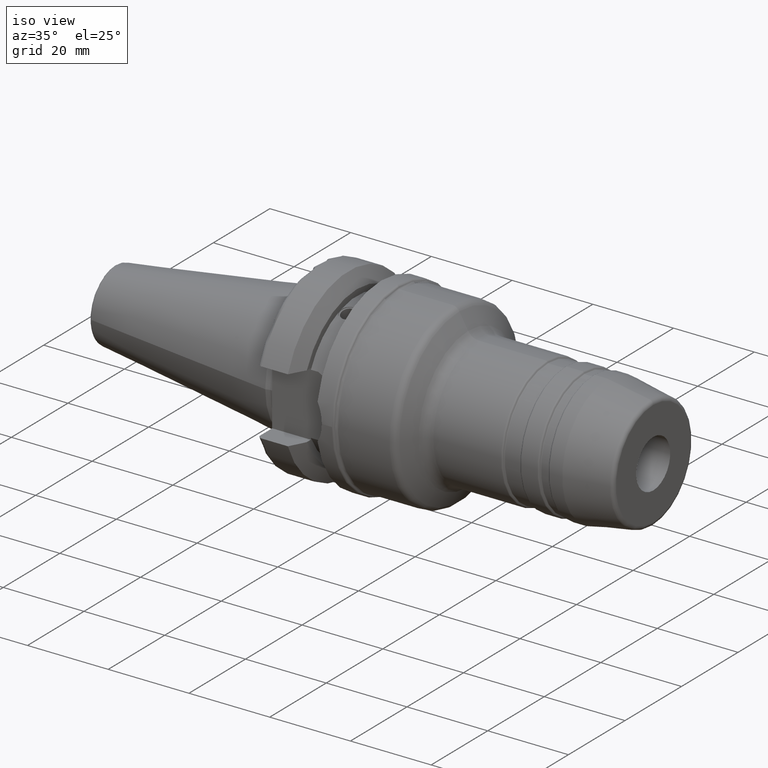
[diagram: clean part render]
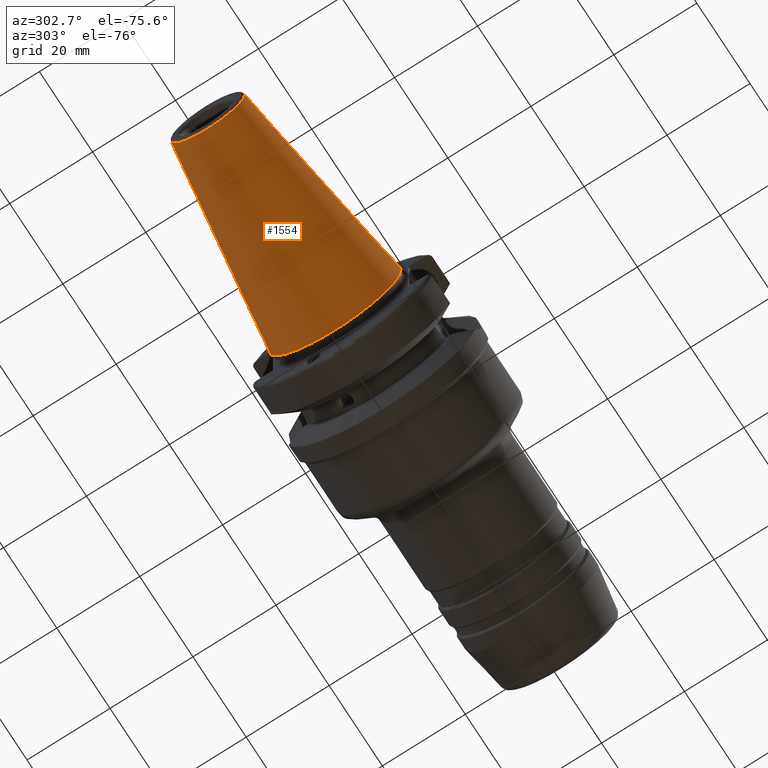
[diagram: tour spotlight — one face highlighted and labeled with its STEP entity id]
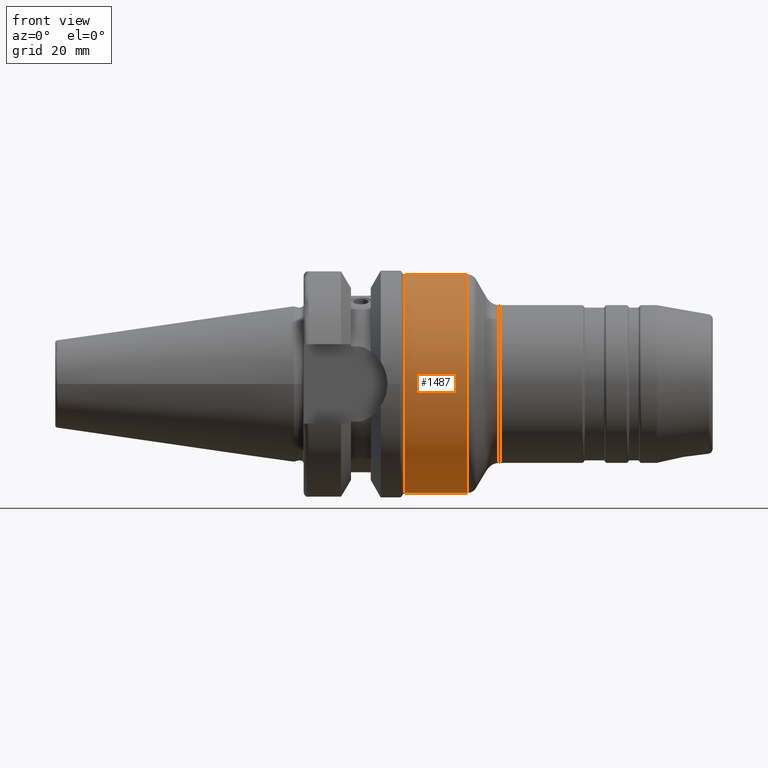
[diagram: tour spotlight — one face highlighted and labeled with its STEP entity id]
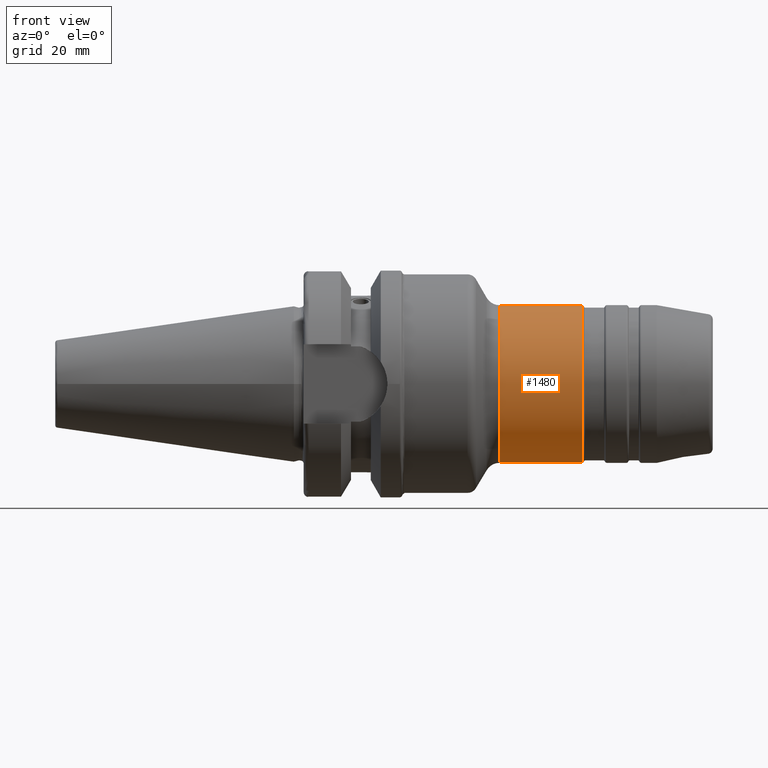
[diagram: tour spotlight — one face highlighted and labeled with its STEP entity id]
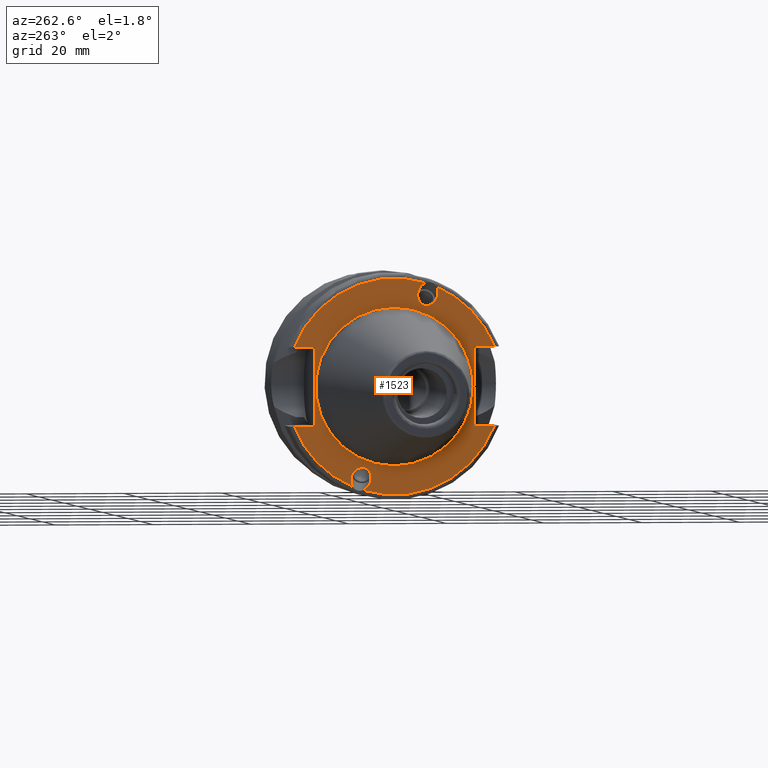
[diagram: tour spotlight — one face highlighted and labeled with its STEP entity id]
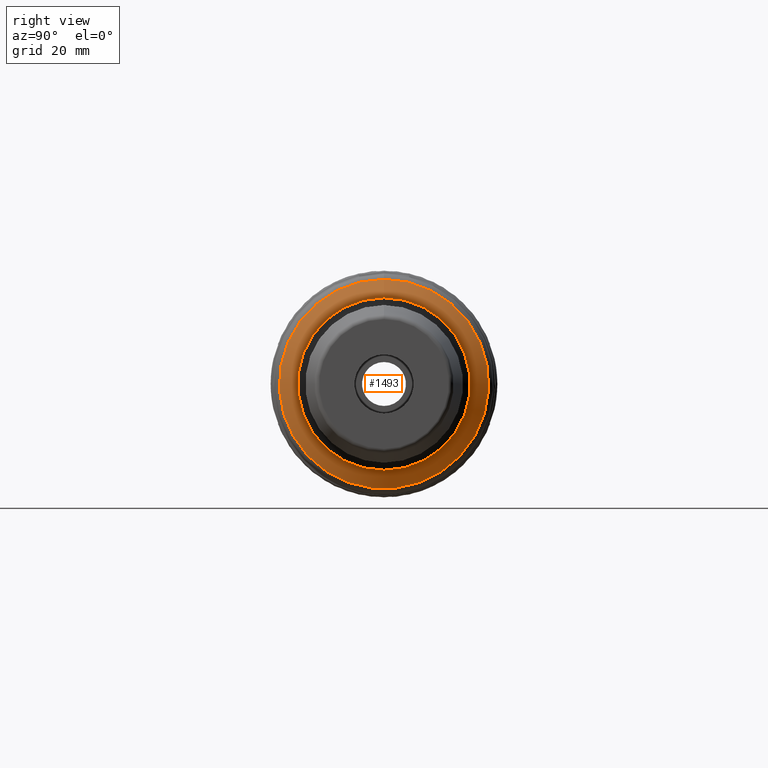
[diagram: tour spotlight — one face highlighted and labeled with its STEP entity id]
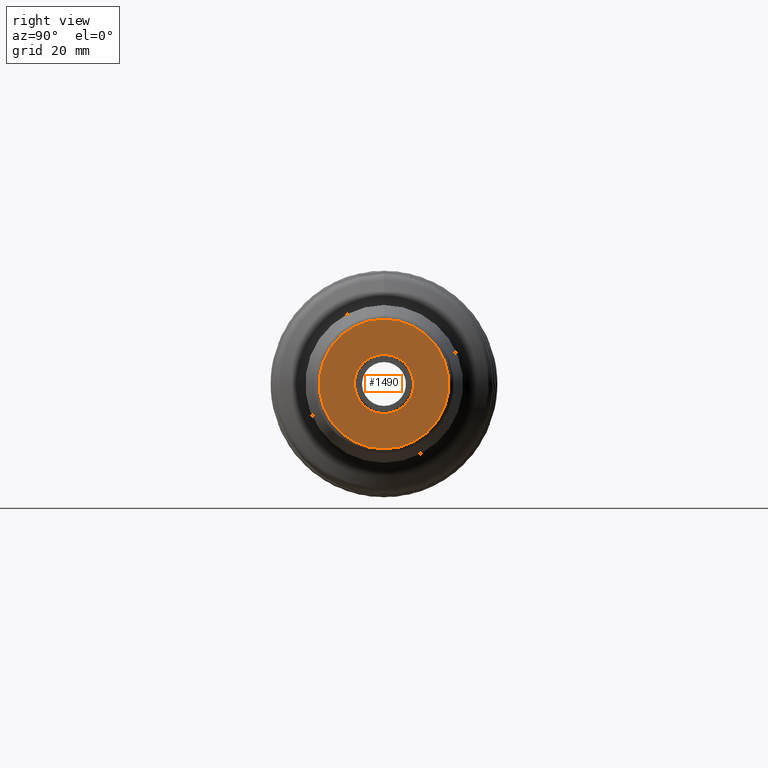
[diagram: tour spotlight — one face highlighted and labeled with its STEP entity id]
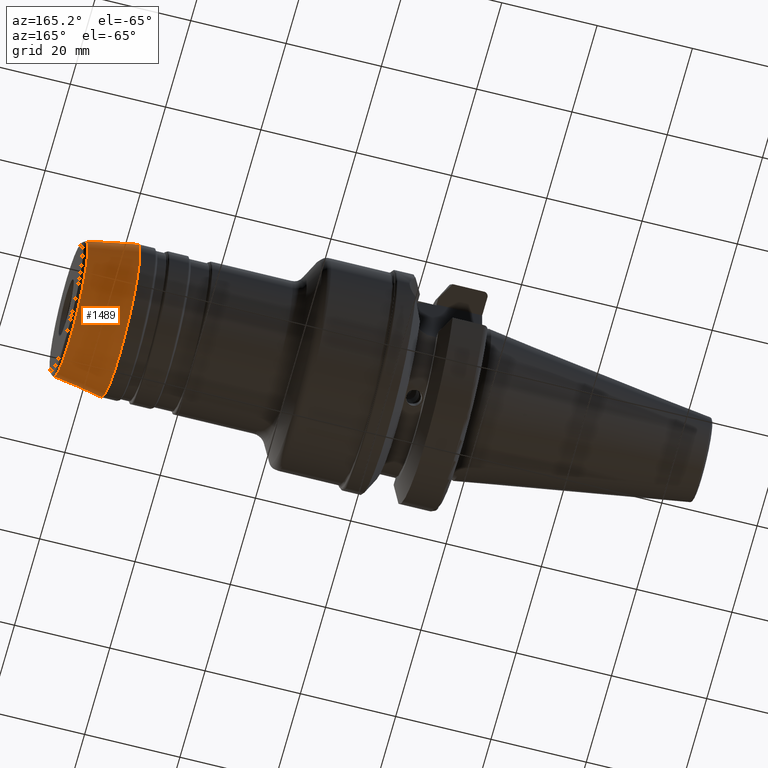
[diagram: tour spotlight — one face highlighted and labeled with its STEP entity id]
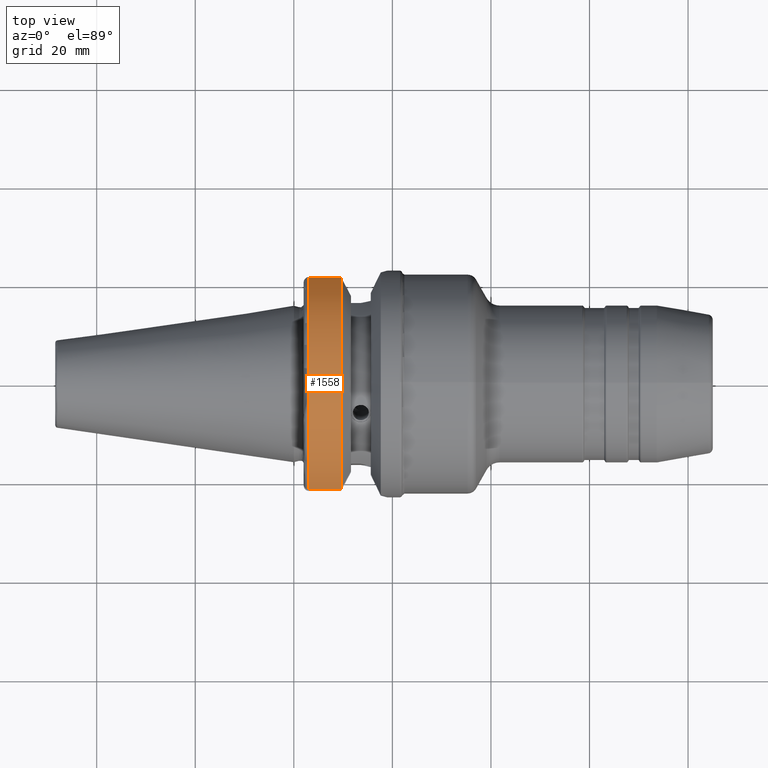
[diagram: tour spotlight — one face highlighted and labeled with its STEP entity id]
A machine part: a face-by-face anatomy tour. The part has 93 B-rep faces; the first image is the clean iso view, then the 8 largest visible faces are spotlighted one at a time (largest first), each with its STEP entity span.

Face 1 — auxiliary view, entity #1554. In plain terms, the highlighted conical surface has half-angle 8.297 deg.
Definition (entity closure, byte-faithful):
#114=CONICAL_SURFACE('',#1789,12.3770304778568,0.144812498238939);
#187=LINE('',#3059,#260);
#260=VECTOR('',#2288,12.3770304778568);
#386=FACE_OUTER_BOUND('',#490,.T.);
#490=EDGE_LOOP('',(#1409,#1410,#1411,#1412,#1413));
#594=CIRCLE('',#1786,8.87906095571352);
#595=CIRCLE('',#1787,8.87906095571352);
#597=CIRCLE('',#1790,15.875);
#742=VERTEX_POINT('',#3051);
#743=VERTEX_POINT('',#3052);
#744=VERTEX_POINT('',#3057);
#969=EDGE_CURVE('',#742,#743,#594,.T.);
#970=EDGE_CURVE('',#743,#742,#595,.T.);
#972=EDGE_CURVE('',#744,#744,#597,.T.);
#973=EDGE_CURVE('',#744,#742,#187,.T.);
#1409=ORIENTED_EDGE('',*,*,#972,.F.);
#1410=ORIENTED_EDGE('',*,*,#973,.T.);
#1411=ORIENTED_EDGE('',*,*,#969,.T.);
#1412=ORIENTED_EDGE('',*,*,#970,.T.);
#1413=ORIENTED_EDGE('',*,*,#973,.F.);
#1554=ADVANCED_FACE('',(#386),#114,.T.);
#1786=AXIS2_PLACEMENT_3D('',#3053,#2278,#2279);
#1787=AXIS2_PLACEMENT_3D('',#3054,#2280,#2281);
#1789=AXIS2_PLACEMENT_3D('',#3056,#2284,#2285);
#1790=AXIS2_PLACEMENT_3D('',#3058,#2286,#2287);
#2278=DIRECTION('center_axis',(1.,1.62798202122572E-21,0.));
#2279=DIRECTION('ref_axis',(0.,0.,-1.));
#2280=DIRECTION('center_axis',(1.,1.62798202122572E-21,0.));
#2281=DIRECTION('ref_axis',(0.,0.,-1.));
#2284=DIRECTION('center_axis',(1.,1.62798202122572E-21,0.));
#2285=DIRECTION('ref_axis',(0.,1.,0.));
#2286=DIRECTION('center_axis',(1.,1.62798202122572E-21,0.));
#2287=DIRECTION('ref_axis',(0.,0.,-1.));
#2288=DIRECTION('',(-0.989532981063282,0.144306893071729,1.76724974695192E-17));
#3051=CARTESIAN_POINT('',(-47.9721534465359,-8.87906095571352,-1.08737135788488E-15));
#3052=CARTESIAN_POINT('',(-47.9721534465359,9.94286113939637E-16,8.87906095571352));
#3053=CARTESIAN_POINT('Origin',(-47.9721534465359,2.08165747182452E-15,
0.));
#3054=CARTESIAN_POINT('Origin',(-47.9721534465359,2.08165747182452E-15,
0.));
#3056=CARTESIAN_POINT('Origin',(-23.9860767232679,2.08169652072618E-15,
0.));
#3057=CARTESIAN_POINT('',(-8.88178419700125E-15,-15.875,-1.94412679364642E-15));
#3058=CARTESIAN_POINT('Origin',(-4.44089209850063E-15,2.08173556962785E-15,
0.));
#3059=CARTESIAN_POINT('',(-23.9860767232679,-12.3770304778568,-1.51574907576565E-15));

Face 2 — front view, entity #1487. In plain terms, the highlighted cylindrical surface (bore or boss wall) has radius 22.25 mm, axis along (1, 0, 0).
Definition (entity closure, byte-faithful):
#126=LINE('',#2397,#199);
#199=VECTOR('',#1913,22.25);
#268=CYLINDRICAL_SURFACE('',#1632,22.25);
#319=FACE_OUTER_BOUND('',#412,.T.);
#412=EDGE_LOOP('',(#1054,#1055,#1056,#1057));
#526=CIRCLE('',#1631,22.25);
#527=CIRCLE('',#1633,22.25);
#623=VERTEX_POINT('',#2391);
#624=VERTEX_POINT('',#2395);
#785=EDGE_CURVE('',#623,#623,#526,.T.);
#786=EDGE_CURVE('',#624,#624,#527,.T.);
#787=EDGE_CURVE('',#624,#623,#126,.T.);
#1054=ORIENTED_EDGE('',*,*,#786,.F.);
#1055=ORIENTED_EDGE('',*,*,#787,.T.);
#1056=ORIENTED_EDGE('',*,*,#785,.F.);
#1057=ORIENTED_EDGE('',*,*,#787,.F.);
#1487=ADVANCED_FACE('',(#319),#268,.T.);
#1631=AXIS2_PLACEMENT_3D('',#2393,#1907,#1908);
#1632=AXIS2_PLACEMENT_3D('',#2394,#1909,#1910);
#1633=AXIS2_PLACEMENT_3D('',#2396,#1911,#1912);
#1907=DIRECTION('center_axis',(-1.,0.,0.));
#1908=DIRECTION('ref_axis',(0.,1.22464610627403E-16,-1.));
#1909=DIRECTION('center_axis',(1.,0.,0.));
#1910=DIRECTION('ref_axis',(0.,0.,-1.));
#1911=DIRECTION('center_axis',(1.,0.,0.));
#1912=DIRECTION('ref_axis',(0.,1.22464679914735E-16,1.));
#1913=DIRECTION('',(-1.,0.,0.));
#2391=CARTESIAN_POINT('',(22.4682458365518,2.08177211288445E-15,22.25));
#2393=CARTESIAN_POINT('Origin',(22.4682458365518,2.0817705712413E-15,0.));
#2394=CARTESIAN_POINT('Origin',(29.1957804087824,0.,0.));
#2395=CARTESIAN_POINT('',(35.2368602791856,-2.72483912810286E-15,22.25));
#2396=CARTESIAN_POINT('Origin',(35.2368602791856,0.,0.));
#2397=CARTESIAN_POINT('',(29.1957804087824,-2.72483912810286E-15,22.25));

Face 3 — front view, entity #1480. In plain terms, the highlighted cylindrical surface (bore or boss wall) has radius 16 mm, axis along (1, 0, 0).
Definition (entity closure, byte-faithful):
#123=LINE('',#2368,#196);
#196=VECTOR('',#1872,16.);
#265=CYLINDRICAL_SURFACE('',#1614,16.);
#312=FACE_OUTER_BOUND('',#405,.T.);
#405=EDGE_LOOP('',(#1026,#1027,#1028,#1029));
#515=CIRCLE('',#1613,16.);
#516=CIRCLE('',#1615,16.);
#616=VERTEX_POINT('',#2363);
#617=VERTEX_POINT('',#2367);
#771=EDGE_CURVE('',#616,#616,#515,.T.);
#772=EDGE_CURVE('',#616,#617,#123,.T.);
#773=EDGE_CURVE('',#617,#617,#516,.T.);
#1026=ORIENTED_EDGE('',*,*,#771,.F.);
#1027=ORIENTED_EDGE('',*,*,#772,.T.);
#1028=ORIENTED_EDGE('',*,*,#773,.F.);
#1029=ORIENTED_EDGE('',*,*,#772,.F.);
#1480=ADVANCED_FACE('',(#312),#265,.T.);
#1613=AXIS2_PLACEMENT_3D('',#2365,#1868,#1869);
#1614=AXIS2_PLACEMENT_3D('',#2366,#1870,#1871);
#1615=AXIS2_PLACEMENT_3D('',#2369,#1873,#1874);
#1868=DIRECTION('center_axis',(1.,0.,0.));
#1869=DIRECTION('ref_axis',(0.,1.22464679914735E-16,1.));
#1870=DIRECTION('center_axis',(1.,0.,0.));
#1871=DIRECTION('ref_axis',(0.,0.,-1.));
#1872=DIRECTION('',(-1.,0.,0.));
#1873=DIRECTION('center_axis',(-1.,0.,0.));
#1874=DIRECTION('ref_axis',(0.,1.22464679914735E-16,1.));
#2363=CARTESIAN_POINT('',(58.4803847577293,-1.95943487863576E-15,16.));
#2365=CARTESIAN_POINT('Origin',(58.4803847577293,0.,0.));
#2366=CARTESIAN_POINT('Origin',(49.3556624327026,0.,0.));
#2367=CARTESIAN_POINT('',(41.7320508075689,-1.95943487863576E-15,16.));
#2368=CARTESIAN_POINT('',(49.3556624327026,-1.95943487863576E-15,16.));
#2369=CARTESIAN_POINT('Origin',(41.7320508075689,0.,0.));

Face 4 — auxiliary view, entity #1523. In plain terms, the highlighted planar face has unit normal (-1, -0, 0).
Definition (entity closure, byte-faithful):
#27=ELLIPSE('',#1684,2.44154917752292,2.00000000000001);
#28=ELLIPSE('',#1685,2.44154917752292,2.00000000000001);
#37=ELLIPSE('',#1724,2.44154917752292,2.00000000000001);
#38=ELLIPSE('',#1725,2.44154917752292,2.00000000000001);
#78=FACE_BOUND('',#457,.T.);
#88=PLANE('',#1726);
#151=LINE('',#2810,#224);
#152=LINE('',#2812,#225);
#153=LINE('',#2814,#226);
#154=LINE('',#2819,#227);
#155=LINE('',#2821,#228);
#156=LINE('',#2822,#229);
#224=VECTOR('',#2124,10.);
#225=VECTOR('',#2125,10.);
#226=VECTOR('',#2126,10.);
#227=VECTOR('',#2131,10.);
#228=VECTOR('',#2132,10.);
#229=VECTOR('',#2133,10.);
#355=FACE_OUTER_BOUND('',#456,.T.);
#456=EDGE_LOOP('',(#1231,#1232,#1233,#1234,#1235,#1236,#1237,#1238,#1239,
#1240,#1241,#1242,#1243,#1244));
#457=EDGE_LOOP('',(#1245));
#553=CIRCLE('',#1693,22.);
#555=CIRCLE('',#1695,22.);
#565=CIRCLE('',#1727,22.);
#566=CIRCLE('',#1728,22.);
#567=CIRCLE('',#1729,16.1);
#657=VERTEX_POINT('',#2609);
#658=VERTEX_POINT('',#2611);
#659=VERTEX_POINT('',#2613);
#666=VERTEX_POINT('',#2656);
#669=VERTEX_POINT('',#2671);
#690=VERTEX_POINT('',#2788);
#691=VERTEX_POINT('',#2790);
#692=VERTEX_POINT('',#2792);
#693=VERTEX_POINT('',#2809);
#694=VERTEX_POINT('',#2811);
#695=VERTEX_POINT('',#2813);
#696=VERTEX_POINT('',#2816);
#697=VERTEX_POINT('',#2818);
#698=VERTEX_POINT('',#2820);
#699=VERTEX_POINT('',#2823);
#838=EDGE_CURVE('',#658,#657,#27,.T.);
#840=EDGE_CURVE('',#657,#659,#28,.T.);
#849=EDGE_CURVE('',#658,#666,#553,.T.);
#853=EDGE_CURVE('',#669,#659,#555,.T.);
#884=EDGE_CURVE('',#691,#690,#37,.T.);
#886=EDGE_CURVE('',#690,#692,#38,.T.);
#887=EDGE_CURVE('',#669,#693,#151,.T.);
#888=EDGE_CURVE('',#693,#694,#152,.T.);
#889=EDGE_CURVE('',#694,#695,#153,.T.);
#890=EDGE_CURVE('',#691,#695,#565,.T.);
#891=EDGE_CURVE('',#696,#692,#566,.T.);
#892=EDGE_CURVE('',#696,#697,#154,.T.);
#893=EDGE_CURVE('',#697,#698,#155,.T.);
#894=EDGE_CURVE('',#698,#666,#156,.T.);
#895=EDGE_CURVE('',#699,#699,#567,.T.);
#1231=ORIENTED_EDGE('',*,*,#838,.T.);
#1232=ORIENTED_EDGE('',*,*,#840,.T.);
#1233=ORIENTED_EDGE('',*,*,#853,.F.);
#1234=ORIENTED_EDGE('',*,*,#887,.T.);
#1235=ORIENTED_EDGE('',*,*,#888,.T.);
#1236=ORIENTED_EDGE('',*,*,#889,.T.);
#1237=ORIENTED_EDGE('',*,*,#890,.F.);
#1238=ORIENTED_EDGE('',*,*,#884,.T.);
#1239=ORIENTED_EDGE('',*,*,#886,.T.);
#1240=ORIENTED_EDGE('',*,*,#891,.F.);
#1241=ORIENTED_EDGE('',*,*,#892,.T.);
#1242=ORIENTED_EDGE('',*,*,#893,.T.);
#1243=ORIENTED_EDGE('',*,*,#894,.T.);
#1244=ORIENTED_EDGE('',*,*,#849,.F.);
#1245=ORIENTED_EDGE('',*,*,#895,.T.);
#1523=ADVANCED_FACE('',(#355,#78),#88,.T.);
#1684=AXIS2_PLACEMENT_3D('',#2612,#2027,#2028);
#1685=AXIS2_PLACEMENT_3D('',#2628,#2029,#2030);
#1693=AXIS2_PLACEMENT_3D('',#2657,#2047,#2048);
#1695=AXIS2_PLACEMENT_3D('',#2682,#2051,#2052);
#1724=AXIS2_PLACEMENT_3D('',#2791,#2118,#2119);
#1725=AXIS2_PLACEMENT_3D('',#2807,#2120,#2121);
#1726=AXIS2_PLACEMENT_3D('',#2808,#2122,#2123);
#1727=AXIS2_PLACEMENT_3D('',#2815,#2127,#2128);
#1728=AXIS2_PLACEMENT_3D('',#2817,#2129,#2130);
#1729=AXIS2_PLACEMENT_3D('',#2824,#2134,#2135);
#2027=DIRECTION('center_axis',(1.,1.62798202122572E-21,0.));
#2028=DIRECTION('ref_axis',(5.68400912649002E-17,-0.34202014332567,0.939692620785908));
#2029=DIRECTION('center_axis',(1.,1.62798202122572E-21,0.));
#2030=DIRECTION('ref_axis',(5.68400912649002E-17,-0.34202014332567,0.939692620785908));
#2047=DIRECTION('center_axis',(1.,1.62798202122572E-21,0.));
#2048=DIRECTION('ref_axis',(0.,0.,-1.));
#2051=DIRECTION('center_axis',(1.,1.62798202122572E-21,0.));
#2052=DIRECTION('ref_axis',(0.,0.,-1.));
#2118=DIRECTION('center_axis',(1.,1.62798202122572E-21,0.));
#2119=DIRECTION('ref_axis',(5.68400912649001E-17,0.34202014332567,-0.939692620785908));
#2120=DIRECTION('center_axis',(1.,1.62798202122572E-21,0.));
#2121=DIRECTION('ref_axis',(5.68400912649001E-17,0.34202014332567,-0.939692620785908));
#2122=DIRECTION('center_axis',(-1.,-1.62798202122572E-21,0.));
#2123=DIRECTION('ref_axis',(0.,0.,1.));
#2124=DIRECTION('',(1.62798202122572E-21,-1.,0.));
#2125=DIRECTION('',(0.,0.,-1.));
#2126=DIRECTION('',(-1.62798202122572E-21,1.,-8.07786870900826E-37));
#2127=DIRECTION('center_axis',(1.,1.62798202122572E-21,0.));
#2128=DIRECTION('ref_axis',(0.,0.,-1.));
#2129=DIRECTION('center_axis',(1.,1.62798202122572E-21,0.));
#2130=DIRECTION('ref_axis',(0.,0.,-1.));
#2131=DIRECTION('',(-1.62798202122572E-21,1.,-8.07786870900826E-37));
#2132=DIRECTION('',(0.,0.,1.));
#2133=DIRECTION('',(1.62798202122572E-21,-1.,0.));
#2134=DIRECTION('center_axis',(1.,1.62798202122572E-21,0.));
#2135=DIRECTION('ref_axis',(0.,0.,-1.));
#2609=CARTESIAN_POINT('',(1.99999999999999,-6.00534386688031,16.499546670314));
#2611=CARTESIAN_POINT('',(2.,-8.62571963431158,20.2385019403673));
#2612=CARTESIAN_POINT('Origin',(1.99999999999999,-6.84040286651337,18.7938524157182));
#2613=CARTESIAN_POINT('',(2.,-6.40137369211844,21.0480976540364));
#2628=CARTESIAN_POINT('Origin',(1.99999999999999,-6.84040286651337,18.7938524157182));
#2656=CARTESIAN_POINT('',(2.,-20.4743131752936,8.05));
#2657=CARTESIAN_POINT('Origin',(2.,2.08173882559189E-15,0.));
#2671=CARTESIAN_POINT('',(2.,20.4743131752936,8.05));
#2682=CARTESIAN_POINT('Origin',(2.,2.08173882559189E-15,0.));
#2788=CARTESIAN_POINT('',(1.99999999999999,6.00534386688031,-16.499546670314));
#2790=CARTESIAN_POINT('',(2.,8.62571963431162,-20.2385019403673));
#2791=CARTESIAN_POINT('Origin',(1.99999999999999,6.84040286651337,-18.7938524157182));
#2792=CARTESIAN_POINT('',(2.,6.40137369211843,-21.0480976540364));
#2807=CARTESIAN_POINT('Origin',(1.99999999999999,6.84040286651337,-18.7938524157182));
#2808=CARTESIAN_POINT('Origin',(1.99999999999999,22.,0.));
#2809=CARTESIAN_POINT('',(1.99999999999999,16.3,8.05));
#2810=CARTESIAN_POINT('',(1.99999999999999,19.15,8.05));
#2811=CARTESIAN_POINT('',(1.99999999999999,16.3,-8.05));
#2812=CARTESIAN_POINT('',(1.99999999999999,16.3,0.));
#2813=CARTESIAN_POINT('',(2.,20.4743131752936,-8.05));
#2814=CARTESIAN_POINT('',(1.99999999999999,19.15,-8.05));
#2815=CARTESIAN_POINT('Origin',(2.,2.08173882559189E-15,0.));
#2816=CARTESIAN_POINT('',(2.,-20.4743131752936,-8.05));
#2817=CARTESIAN_POINT('Origin',(2.,2.08173882559189E-15,0.));
#2818=CARTESIAN_POINT('',(1.99999999999999,-16.3,-8.05));
#2819=CARTESIAN_POINT('',(1.99999999999999,2.85,-8.05));
#2820=CARTESIAN_POINT('',(1.99999999999999,-16.3,8.05));
#2821=CARTESIAN_POINT('',(1.99999999999999,-16.3,0.));
#2822=CARTESIAN_POINT('',(1.99999999999999,2.85,8.05));
#2823=CARTESIAN_POINT('',(2.,1.10057478964651E-16,16.1));
#2824=CARTESIAN_POINT('Origin',(2.,2.08173882559189E-15,0.));

Face 5 — right view, entity #1493. In plain terms, the highlighted conical surface has half-angle 60 deg.
Definition (entity closure, byte-faithful):
#106=CONICAL_SURFACE('',#1647,19.125,1.0471975511966);
#128=LINE('',#2420,#201);
#201=VECTOR('',#1945,19.125);
#325=FACE_OUTER_BOUND('',#419,.T.);
#419=EDGE_LOOP('',(#1076,#1077,#1078,#1079));
#534=CIRCLE('',#1645,21.25);
#536=CIRCLE('',#1648,17.5);
#629=VERTEX_POINT('',#2414);
#630=VERTEX_POINT('',#2418);
#795=EDGE_CURVE('',#629,#629,#534,.T.);
#797=EDGE_CURVE('',#630,#630,#536,.T.);
#798=EDGE_CURVE('',#630,#629,#128,.T.);
#1076=ORIENTED_EDGE('',*,*,#797,.F.);
#1077=ORIENTED_EDGE('',*,*,#798,.T.);
#1078=ORIENTED_EDGE('',*,*,#795,.F.);
#1079=ORIENTED_EDGE('',*,*,#798,.F.);
#1493=ADVANCED_FACE('',(#325),#106,.T.);
#1645=AXIS2_PLACEMENT_3D('',#2415,#1937,#1938);
#1647=AXIS2_PLACEMENT_3D('',#2417,#1941,#1942);
#1648=AXIS2_PLACEMENT_3D('',#2419,#1943,#1944);
#1937=DIRECTION('center_axis',(-1.,0.,0.));
#1938=DIRECTION('ref_axis',(0.,0.,1.));
#1941=DIRECTION('center_axis',(-1.,0.,0.));
#1942=DIRECTION('ref_axis',(0.,0.,-1.));
#1943=DIRECTION('center_axis',(1.,0.,0.));
#1944=DIRECTION('ref_axis',(0.,0.,1.));
#1945=DIRECTION('',(-0.5,-1.06057523872491E-16,0.866025403784439));
#2414=CARTESIAN_POINT('',(36.9689110867545,-2.60237444818813E-15,21.25));
#2415=CARTESIAN_POINT('Origin',(36.9689110867545,-2.60237444818813E-15,
0.));
#2417=CARTESIAN_POINT('Origin',(38.1957804087824,0.,0.));
#2418=CARTESIAN_POINT('',(39.1339745962156,-2.14313189850787E-15,17.5));
#2419=CARTESIAN_POINT('Origin',(39.1339745962156,-2.14313189850787E-15,
0.));
#2420=CARTESIAN_POINT('',(38.1957804087824,-2.34213700336931E-15,19.125));

Face 6 — right view, entity #1490. In plain terms, the highlighted planar face has unit normal (1, 0, 0).
Definition (entity closure, byte-faithful):
#70=FACE_BOUND('',#416,.T.);
#81=PLANE('',#1640);
#322=FACE_OUTER_BOUND('',#415,.T.);
#415=EDGE_LOOP('',(#1066));
#416=EDGE_LOOP('',(#1067));
#528=CIRCLE('',#1635,13.1609003688227);
#532=CIRCLE('',#1641,6.);
#625=VERTEX_POINT('',#2399);
#628=VERTEX_POINT('',#2409);
#788=EDGE_CURVE('',#625,#625,#528,.T.);
#793=EDGE_CURVE('',#628,#628,#532,.T.);
#1066=ORIENTED_EDGE('',*,*,#788,.F.);
#1067=ORIENTED_EDGE('',*,*,#793,.F.);
#1490=ADVANCED_FACE('',(#322,#70),#81,.T.);
#1635=AXIS2_PLACEMENT_3D('',#2400,#1916,#1917);
#1640=AXIS2_PLACEMENT_3D('',#2408,#1927,#1928);
#1641=AXIS2_PLACEMENT_3D('',#2410,#1929,#1930);
#1916=DIRECTION('center_axis',(-1.,0.,0.));
#1917=DIRECTION('ref_axis',(0.,1.22464679914735E-16,1.));
#1927=DIRECTION('center_axis',(1.,0.,0.));
#1928=DIRECTION('ref_axis',(0.,0.,-1.));
#1929=DIRECTION('center_axis',(1.,0.,0.));
#1930=DIRECTION('ref_axis',(0.,0.,-1.));
#2399=CARTESIAN_POINT('',(85.,-1.6117454510576E-15,13.1609003688227));
#2400=CARTESIAN_POINT('Origin',(85.,0.,0.));
#2408=CARTESIAN_POINT('Origin',(85.,0.,-6.));
#2409=CARTESIAN_POINT('',(85.,-7.34788079488411E-16,5.99999999999999));
#2410=CARTESIAN_POINT('Origin',(85.,0.,0.));

Face 7 — auxiliary view, entity #1489. In plain terms, the highlighted conical surface has half-angle 10 deg.
Definition (entity closure, byte-faithful):
#105=CONICAL_SURFACE('',#1638,15.,0.174532925199432);
#127=LINE('',#2406,#200);
#200=VECTOR('',#1924,15.);
#321=FACE_OUTER_BOUND('',#414,.T.);
#414=EDGE_LOOP('',(#1062,#1063,#1064,#1065));
#530=CIRCLE('',#1637,14.1457081218349);
#531=CIRCLE('',#1639,15.9848077530122);
#626=VERTEX_POINT('',#2401);
#627=VERTEX_POINT('',#2405);
#790=EDGE_CURVE('',#626,#626,#530,.T.);
#791=EDGE_CURVE('',#626,#627,#127,.T.);
#792=EDGE_CURVE('',#627,#627,#531,.T.);
#1062=ORIENTED_EDGE('',*,*,#790,.F.);
#1063=ORIENTED_EDGE('',*,*,#791,.T.);
#1064=ORIENTED_EDGE('',*,*,#792,.F.);
#1065=ORIENTED_EDGE('',*,*,#791,.F.);
#1489=ADVANCED_FACE('',(#321),#105,.T.);
#1637=AXIS2_PLACEMENT_3D('',#2403,#1920,#1921);
#1638=AXIS2_PLACEMENT_3D('',#2404,#1922,#1923);
#1639=AXIS2_PLACEMENT_3D('',#2407,#1925,#1926);
#1920=DIRECTION('center_axis',(1.,0.,0.));
#1921=DIRECTION('ref_axis',(0.,0.,1.));
#1922=DIRECTION('center_axis',(-1.,0.,0.));
#1923=DIRECTION('ref_axis',(0.,0.,-1.));
#1924=DIRECTION('',(-0.984807753012208,-2.12657684957576E-17,0.17364817766693));
#1925=DIRECTION('center_axis',(-1.,0.,0.));
#1926=DIRECTION('ref_axis',(0.,0.,1.));
#2401=CARTESIAN_POINT('',(84.1736481776669,-1.73234961730779E-15,14.1457081218349));
#2403=CARTESIAN_POINT('Origin',(84.1736481776669,-1.73234961730779E-15,
0.));
#2404=CARTESIAN_POINT('Origin',(79.3287181803823,0.,0.));
#2405=CARTESIAN_POINT('',(73.7435958749056,-1.95757436497122E-15,15.9848077530122));
#2406=CARTESIAN_POINT('',(79.3287181803823,-1.83697019872103E-15,15.));
#2407=CARTESIAN_POINT('Origin',(73.7435958749056,-1.95757436497122E-15,
0.));

Face 8 — top view, entity #1558. In plain terms, the highlighted cylindrical surface (partial cylindrical patch) has radius 23 mm, axis along (1, 0, 0).
Definition (entity closure, byte-faithful):
#165=LINE('',#2899,#238);
#181=LINE('',#3017,#254);
#238=VECTOR('',#2166,10.);
#254=VECTOR('',#2230,10.);
#300=CYLINDRICAL_SURFACE('',#1798,23.);
#390=FACE_OUTER_BOUND('',#494,.T.);
#494=EDGE_LOOP('',(#1428,#1429,#1430,#1431));
#554=CIRCLE('',#1694,23.);
#602=CIRCLE('',#1799,23.);
#667=VERTEX_POINT('',#2658);
#668=VERTEX_POINT('',#2669);
#715=VERTEX_POINT('',#2895);
#734=VERTEX_POINT('',#3012);
#851=EDGE_CURVE('',#668,#667,#554,.T.);
#916=EDGE_CURVE('',#667,#715,#165,.T.);
#953=EDGE_CURVE('',#734,#668,#181,.T.);
#980=EDGE_CURVE('',#734,#715,#602,.T.);
#1428=ORIENTED_EDGE('',*,*,#916,.T.);
#1429=ORIENTED_EDGE('',*,*,#980,.F.);
#1430=ORIENTED_EDGE('',*,*,#953,.T.);
#1431=ORIENTED_EDGE('',*,*,#851,.T.);
#1558=ADVANCED_FACE('',(#390),#300,.T.);
#1694=AXIS2_PLACEMENT_3D('',#2670,#2049,#2050);
#1798=AXIS2_PLACEMENT_3D('',#3072,#2305,#2306);
#1799=AXIS2_PLACEMENT_3D('',#3073,#2307,#2308);
#2049=DIRECTION('center_axis',(1.,1.62798202122572E-21,0.));
#2050=DIRECTION('ref_axis',(0.,0.,-1.));
#2166=DIRECTION('',(1.,1.62798202122572E-21,0.));
#2230=DIRECTION('',(-1.,-1.62798202122572E-21,0.));
#2305=DIRECTION('center_axis',(1.,1.62798202122572E-21,0.));
#2306=DIRECTION('ref_axis',(0.,1.,0.));
#2307=DIRECTION('center_axis',(1.,1.62798202122572E-21,0.));
#2308=DIRECTION('ref_axis',(0.,0.,-1.));
#2658=CARTESIAN_POINT('',(2.99999999999999,-21.5452430944745,8.05));
#2669=CARTESIAN_POINT('',(2.99999999999999,21.5452430944745,8.05));
#2670=CARTESIAN_POINT('Origin',(2.99999999999999,2.08174045357391E-15,0.));
#2895=CARTESIAN_POINT('',(9.57005904049381,-21.5452430944744,8.05));
#2899=CARTESIAN_POINT('',(6.2850295202469,-21.5452430944745,8.05));
#3012=CARTESIAN_POINT('',(9.57005904049381,21.5452430944744,8.05));
#3017=CARTESIAN_POINT('',(6.2850295202469,21.5452430944745,8.05));
#3072=CARTESIAN_POINT('Origin',(6.2850295202469,2.08174580154291E-15,0.));
#3073=CARTESIAN_POINT('Origin',(9.57005904049381,2.08175114951191E-15,0.));